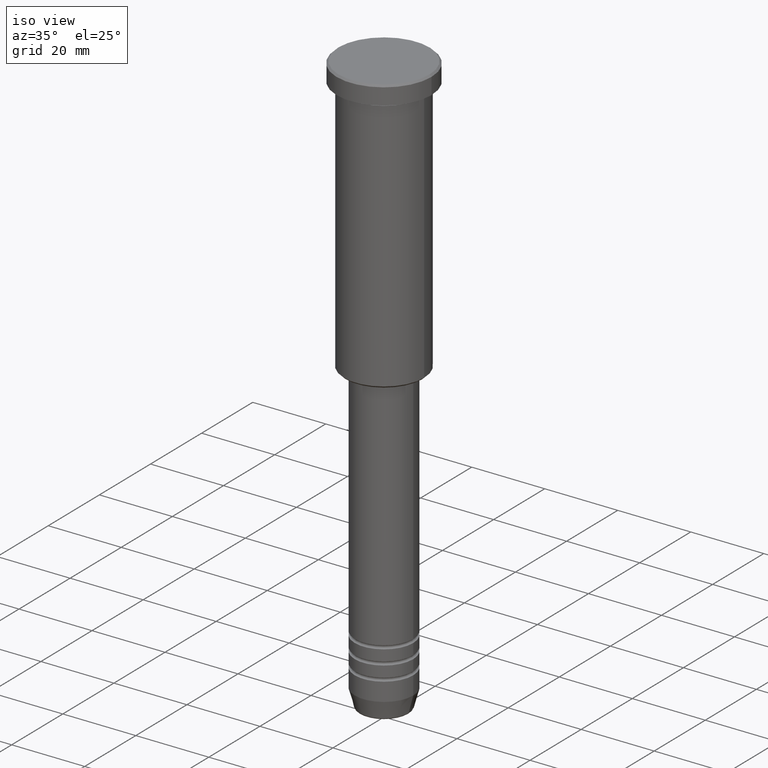
[diagram: clean part render]
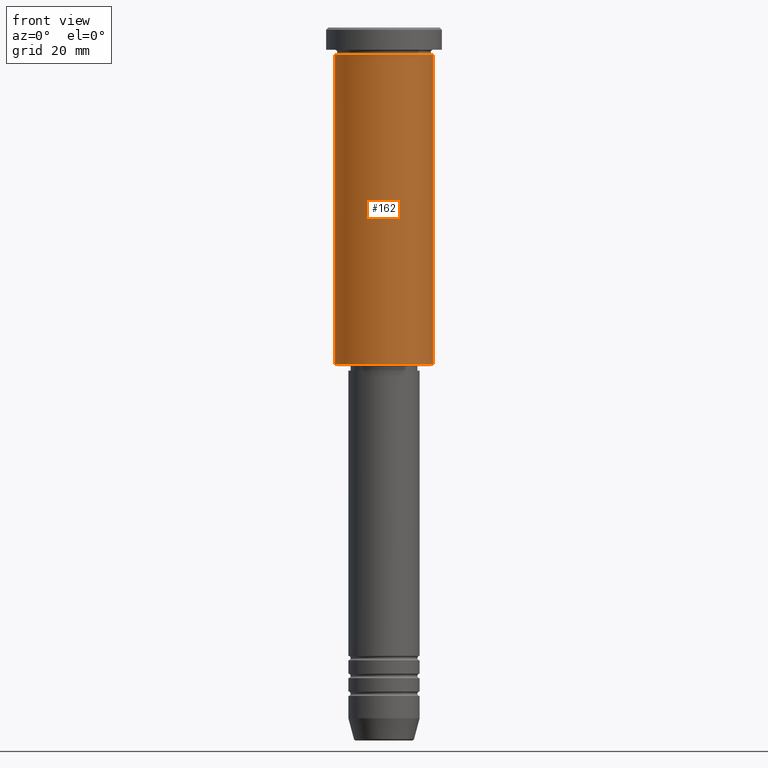
[diagram: tour spotlight — one face highlighted and labeled with its STEP entity id]
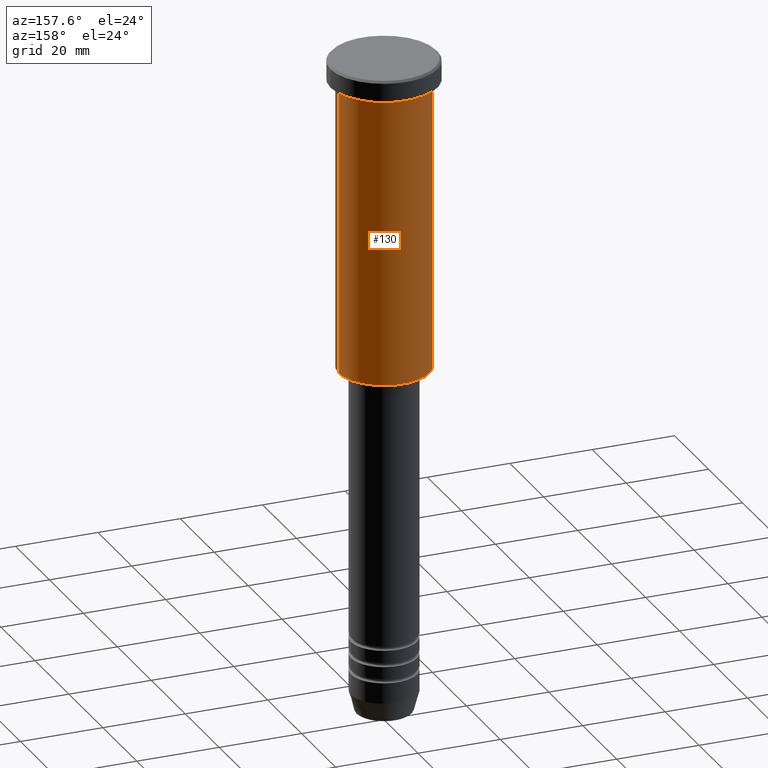
[diagram: tour spotlight — one face highlighted and labeled with its STEP entity id]
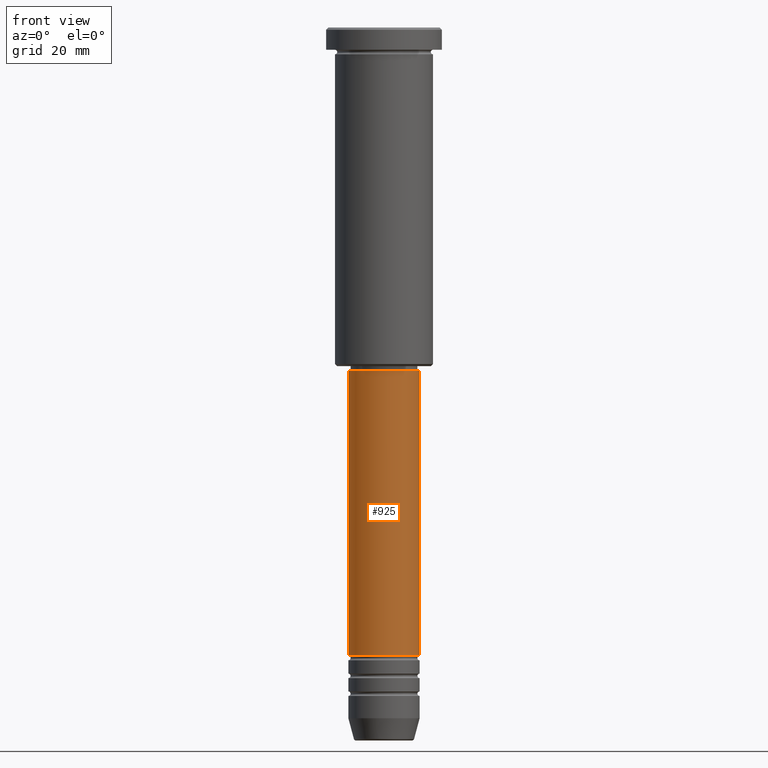
[diagram: tour spotlight — one face highlighted and labeled with its STEP entity id]
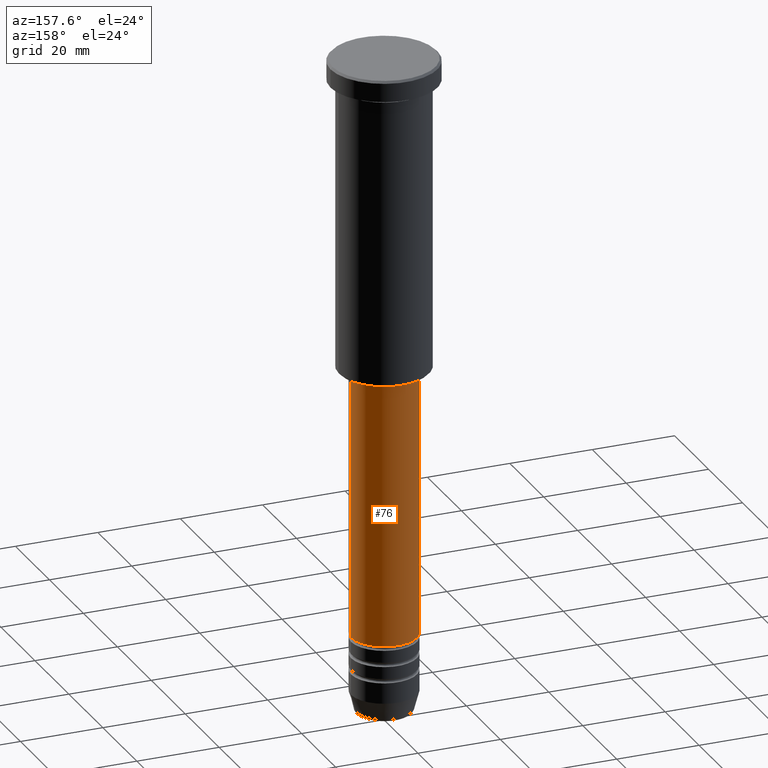
[diagram: tour spotlight — one face highlighted and labeled with its STEP entity id]
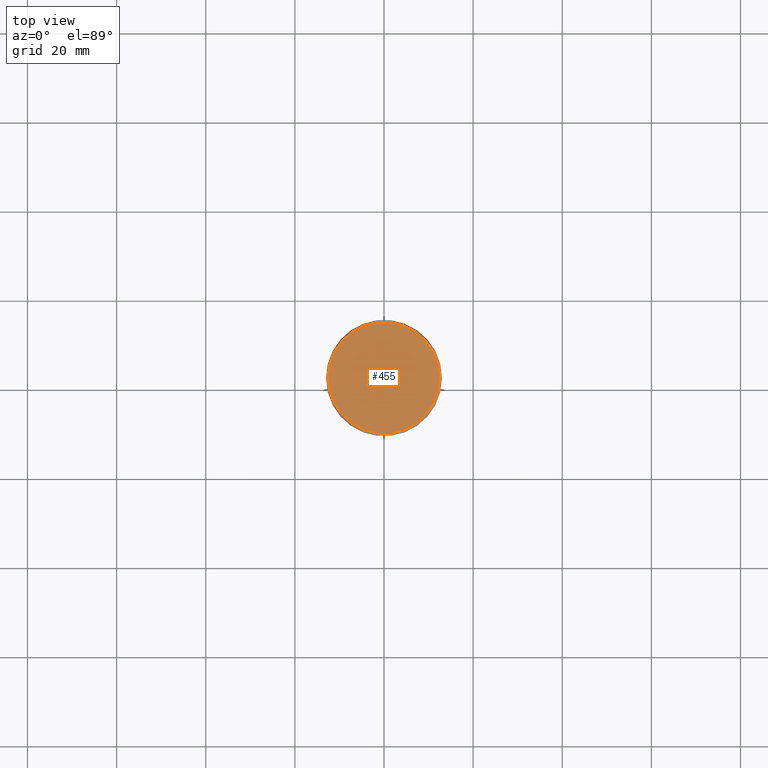
[diagram: tour spotlight — one face highlighted and labeled with its STEP entity id]
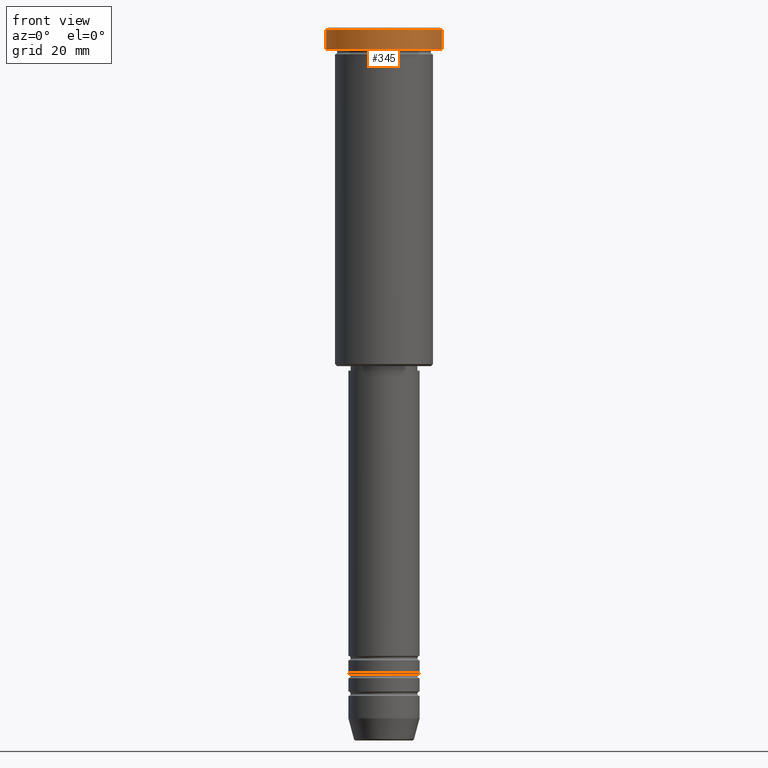
[diagram: tour spotlight — one face highlighted and labeled with its STEP entity id]
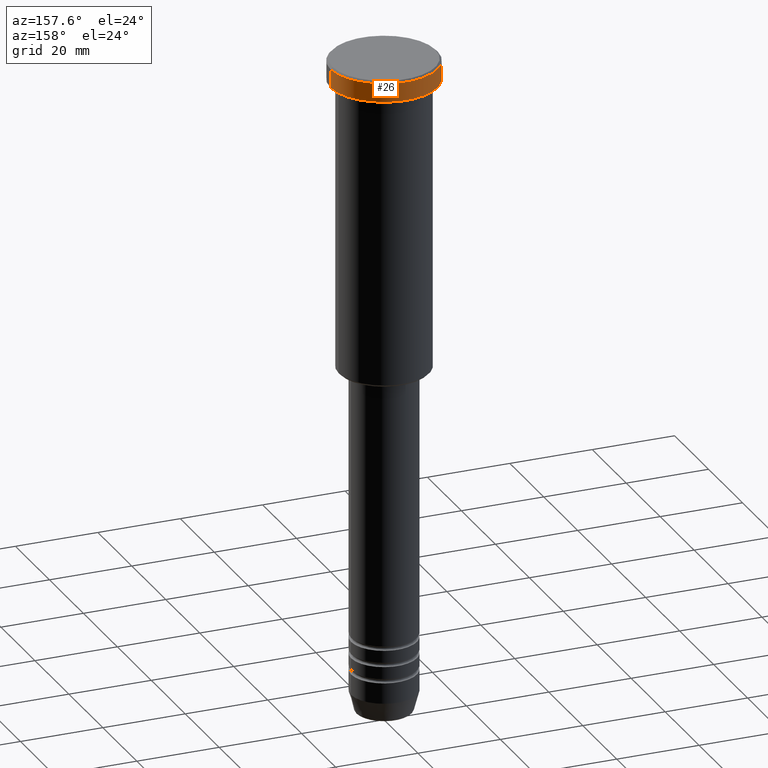
[diagram: tour spotlight — one face highlighted and labeled with its STEP entity id]
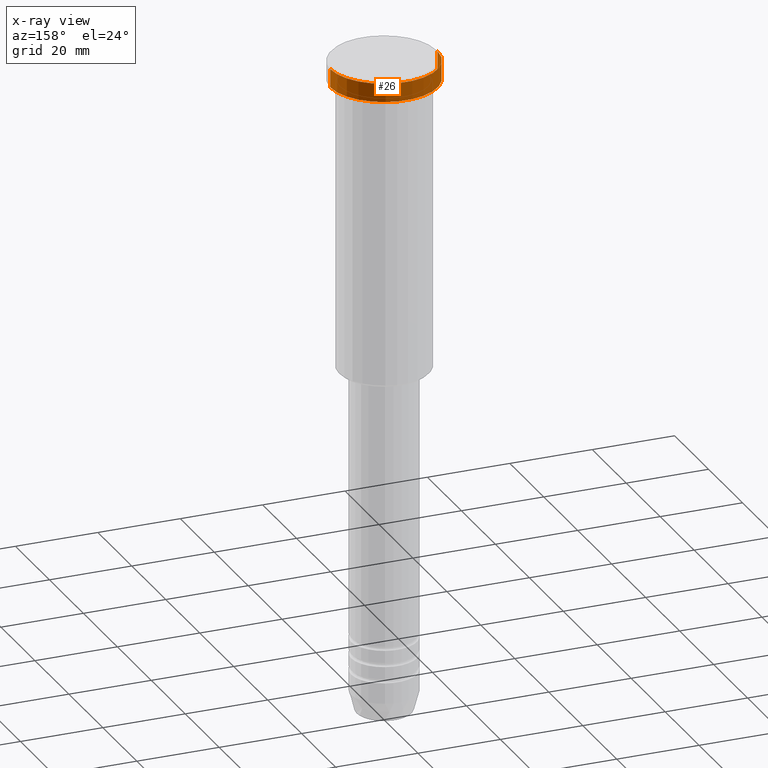
[diagram: x-ray of the same camera — body ghosted, this tour face saturated]
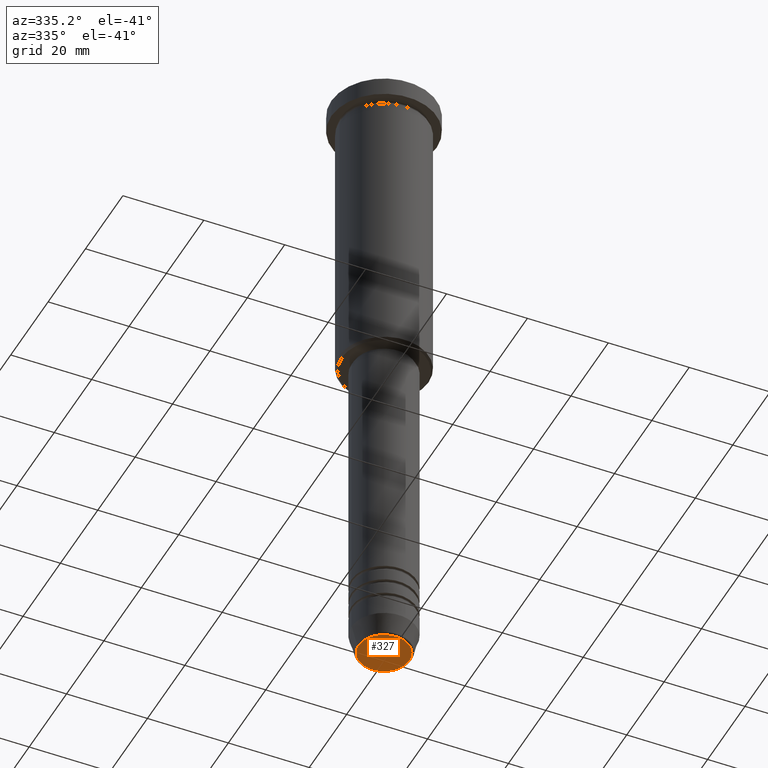
[diagram: tour spotlight — one face highlighted and labeled with its STEP entity id]
A machine part: a face-by-face anatomy tour. The part has 43 B-rep faces; the first image is the clean iso view, then the 8 largest visible faces are spotlighted one at a time (largest first), each with its STEP entity span.

Face 1 — front view, entity #162. In plain terms, the highlighted cylindrical surface (partial cylindrical patch) has radius 11 mm, axis along (-0, -0, 1).
Definition (entity closure, byte-faithful):
#3 = CYLINDRICAL_SURFACE ( 'NONE', #5, 11.00000000000000000 ) ;
#5 = AXIS2_PLACEMENT_3D ( 'NONE', #1017, #453, #198 ) ;
#22 = CARTESIAN_POINT ( 'NONE',  ( 0.000000000000000000, 0.000000000000000000, -75.49999999999998579 ) ) ;
#59 = VERTEX_POINT ( 'NONE', #591 ) ;
#68 = EDGE_LOOP ( 'NONE', ( #470, #503, #355, #822 ) ) ;
#69 = AXIS2_PLACEMENT_3D ( 'NONE', #990, #172, #473 ) ;
#139 = EDGE_CURVE ( 'NONE', #887, #1087, #705, .T. ) ;
#162 = ADVANCED_FACE ( 'NONE', ( #447 ), #3, .T. ) ;
#172 = DIRECTION ( 'NONE',  ( -0.000000000000000000, -0.000000000000000000, 1.000000000000000000 ) ) ;
#198 = DIRECTION ( 'NONE',  ( 1.000000000000000000, 0.000000000000000000, 0.000000000000000000 ) ) ;
#283 = VERTEX_POINT ( 'NONE', #820 ) ;
#285 = AXIS2_PLACEMENT_3D ( 'NONE', #22, #395, #309 ) ;
#309 = DIRECTION ( 'NONE',  ( -1.000000000000000000, 0.000000000000000000, 0.000000000000000000 ) ) ;
#355 = ORIENTED_EDGE ( 'NONE', *, *, #829, .T. ) ;
#395 = DIRECTION ( 'NONE',  ( -0.000000000000000000, -0.000000000000000000, 1.000000000000000000 ) ) ;
#406 = EDGE_CURVE ( 'NONE', #59, #887, #930, .T. ) ;
#447 = FACE_OUTER_BOUND ( 'NONE', #68, .T. ) ;
#453 = DIRECTION ( 'NONE',  ( -0.000000000000000000, -0.000000000000000000, 1.000000000000000000 ) ) ;
#470 = ORIENTED_EDGE ( 'NONE', *, *, #406, .F. ) ;
#473 = DIRECTION ( 'NONE',  ( 1.000000000000000000, 0.000000000000000000, 0.000000000000000000 ) ) ;
#503 = ORIENTED_EDGE ( 'NONE', *, *, #750, .T. ) ;
#511 = VECTOR ( 'NONE', #899, 1000.000000000000000 ) ;
#585 = CARTESIAN_POINT ( 'NONE',  ( 11.00000000000000000, 0.000000000000000000, 0.000000000000000000 ) ) ;
#591 = CARTESIAN_POINT ( 'NONE',  ( -11.00000000000000000, 1.347111479062088405E-15, -75.49999999999998579 ) ) ;
#602 = DIRECTION ( 'NONE',  ( -0.000000000000000000, -0.000000000000000000, 1.000000000000000000 ) ) ;
#705 = CIRCLE ( 'NONE', #69, 11.00000000000000000 ) ;
#748 = CARTESIAN_POINT ( 'NONE',  ( 11.00000000000000000, 0.000000000000000000, -5.999999999999999112 ) ) ;
#750 = EDGE_CURVE ( 'NONE', #59, #283, #787, .T. ) ;
#768 = CARTESIAN_POINT ( 'NONE',  ( -11.00000000000000000, 1.347111479062088405E-15, -5.999999999999999112 ) ) ;
#787 = CIRCLE ( 'NONE', #285, 11.00000000000000000 ) ;
#820 = CARTESIAN_POINT ( 'NONE',  ( 11.00000000000000000, 0.000000000000000000, -75.49999999999998579 ) ) ;
#822 = ORIENTED_EDGE ( 'NONE', *, *, #139, .F. ) ;
#829 = EDGE_CURVE ( 'NONE', #283, #1087, #1129, .T. ) ;
#832 = CARTESIAN_POINT ( 'NONE',  ( -11.00000000000000000, 1.347111479062088405E-15, 0.000000000000000000 ) ) ;
#887 = VERTEX_POINT ( 'NONE', #768 ) ;
#899 = DIRECTION ( 'NONE',  ( -0.000000000000000000, -0.000000000000000000, 1.000000000000000000 ) ) ;
#930 = LINE ( 'NONE', #832, #511 ) ;
#990 = CARTESIAN_POINT ( 'NONE',  ( 0.000000000000000000, 0.000000000000000000, -5.999999999999999112 ) ) ;
#1017 = CARTESIAN_POINT ( 'NONE',  ( 0.000000000000000000, 0.000000000000000000, 0.000000000000000000 ) ) ;
#1087 = VERTEX_POINT ( 'NONE', #748 ) ;
#1091 = VECTOR ( 'NONE', #602, 1000.000000000000000 ) ;
#1129 = LINE ( 'NONE', #585, #1091 ) ;

Face 2 — auxiliary view, entity #130. In plain terms, the highlighted cylindrical surface (partial cylindrical patch) has radius 11 mm, axis along (-0, -0, 1).
Definition (entity closure, byte-faithful):
#46 = EDGE_CURVE ( 'NONE', #283, #59, #889, .T. ) ;
#59 = VERTEX_POINT ( 'NONE', #591 ) ;
#70 = EDGE_LOOP ( 'NONE', ( #371, #1155, #772, #647 ) ) ;
#130 = ADVANCED_FACE ( 'NONE', ( #368 ), #1173, .T. ) ;
#132 = CARTESIAN_POINT ( 'NONE',  ( 0.000000000000000000, 0.000000000000000000, -75.49999999999998579 ) ) ;
#259 = DIRECTION ( 'NONE',  ( -0.000000000000000000, -0.000000000000000000, 1.000000000000000000 ) ) ;
#282 = CIRCLE ( 'NONE', #696, 11.00000000000000000 ) ;
#283 = VERTEX_POINT ( 'NONE', #820 ) ;
#368 = FACE_OUTER_BOUND ( 'NONE', #70, .T. ) ;
#371 = ORIENTED_EDGE ( 'NONE', *, *, #46, .T. ) ;
#406 = EDGE_CURVE ( 'NONE', #59, #887, #930, .T. ) ;
#509 = DIRECTION ( 'NONE',  ( 1.000000000000000000, 0.000000000000000000, 0.000000000000000000 ) ) ;
#511 = VECTOR ( 'NONE', #899, 1000.000000000000000 ) ;
#585 = CARTESIAN_POINT ( 'NONE',  ( 11.00000000000000000, 0.000000000000000000, 0.000000000000000000 ) ) ;
#591 = CARTESIAN_POINT ( 'NONE',  ( -11.00000000000000000, 1.347111479062088405E-15, -75.49999999999998579 ) ) ;
#602 = DIRECTION ( 'NONE',  ( -0.000000000000000000, -0.000000000000000000, 1.000000000000000000 ) ) ;
#647 = ORIENTED_EDGE ( 'NONE', *, *, #829, .F. ) ;
#696 = AXIS2_PLACEMENT_3D ( 'NONE', #1033, #1056, #509 ) ;
#748 = CARTESIAN_POINT ( 'NONE',  ( 11.00000000000000000, 0.000000000000000000, -5.999999999999999112 ) ) ;
#768 = CARTESIAN_POINT ( 'NONE',  ( -11.00000000000000000, 1.347111479062088405E-15, -5.999999999999999112 ) ) ;
#772 = ORIENTED_EDGE ( 'NONE', *, *, #924, .F. ) ;
#820 = CARTESIAN_POINT ( 'NONE',  ( 11.00000000000000000, 0.000000000000000000, -75.49999999999998579 ) ) ;
#829 = EDGE_CURVE ( 'NONE', #283, #1087, #1129, .T. ) ;
#832 = CARTESIAN_POINT ( 'NONE',  ( -11.00000000000000000, 1.347111479062088405E-15, 0.000000000000000000 ) ) ;
#887 = VERTEX_POINT ( 'NONE', #768 ) ;
#889 = CIRCLE ( 'NONE', #912, 11.00000000000000000 ) ;
#899 = DIRECTION ( 'NONE',  ( -0.000000000000000000, -0.000000000000000000, 1.000000000000000000 ) ) ;
#912 = AXIS2_PLACEMENT_3D ( 'NONE', #132, #1044, #948 ) ;
#924 = EDGE_CURVE ( 'NONE', #1087, #887, #282, .T. ) ;
#930 = LINE ( 'NONE', #832, #511 ) ;
#948 = DIRECTION ( 'NONE',  ( -1.000000000000000000, 0.000000000000000000, 0.000000000000000000 ) ) ;
#974 = DIRECTION ( 'NONE',  ( 1.000000000000000000, 0.000000000000000000, 0.000000000000000000 ) ) ;
#1033 = CARTESIAN_POINT ( 'NONE',  ( 0.000000000000000000, 0.000000000000000000, -5.999999999999999112 ) ) ;
#1044 = DIRECTION ( 'NONE',  ( -0.000000000000000000, -0.000000000000000000, 1.000000000000000000 ) ) ;
#1056 = DIRECTION ( 'NONE',  ( -0.000000000000000000, -0.000000000000000000, 1.000000000000000000 ) ) ;
#1058 = CARTESIAN_POINT ( 'NONE',  ( 0.000000000000000000, 0.000000000000000000, 0.000000000000000000 ) ) ;
#1087 = VERTEX_POINT ( 'NONE', #748 ) ;
#1091 = VECTOR ( 'NONE', #602, 1000.000000000000000 ) ;
#1129 = LINE ( 'NONE', #585, #1091 ) ;
#1155 = ORIENTED_EDGE ( 'NONE', *, *, #406, .T. ) ;
#1169 = AXIS2_PLACEMENT_3D ( 'NONE', #1058, #259, #974 ) ;
#1173 = CYLINDRICAL_SURFACE ( 'NONE', #1169, 11.00000000000000000 ) ;

Face 3 — front view, entity #925. In plain terms, the highlighted cylindrical surface (edge-blend (fillet) strip) has radius 8 mm, axis along (-0, -0, 1).
Definition (entity closure, byte-faithful):
#12 = EDGE_CURVE ( 'NONE', #1013, #932, #297, .T. ) ;
#15 = EDGE_CURVE ( 'NONE', #280, #932, #247, .T. ) ;
#55 = CARTESIAN_POINT ( 'NONE',  ( 8.000000000000000000, 0.000000000000000000, -77.00000000000004263 ) ) ;
#60 = CIRCLE ( 'NONE', #1032, 8.000000000000000000 ) ;
#102 = CARTESIAN_POINT ( 'NONE',  ( 0.000000000000000000, 0.000000000000000000, -77.00000000000004263 ) ) ;
#148 = DIRECTION ( 'NONE',  ( -0.000000000000000000, -0.000000000000000000, 1.000000000000000000 ) ) ;
#155 = CARTESIAN_POINT ( 'NONE',  ( 8.000000000000000000, 0.000000000000000000, -141.0000000000000000 ) ) ;
#182 = AXIS2_PLACEMENT_3D ( 'NONE', #874, #593, #962 ) ;
#223 = CYLINDRICAL_SURFACE ( 'NONE', #182, 8.000000000000000000 ) ;
#234 = FACE_OUTER_BOUND ( 'NONE', #919, .T. ) ;
#247 = CIRCLE ( 'NONE', #642, 8.000000000000000000 ) ;
#280 = VERTEX_POINT ( 'NONE', #516 ) ;
#297 = LINE ( 'NONE', #378, #769 ) ;
#311 = ORIENTED_EDGE ( 'NONE', *, *, #15, .F. ) ;
#378 = CARTESIAN_POINT ( 'NONE',  ( 8.000000000000000000, 0.000000000000000000, 0.000000000000000000 ) ) ;
#379 = LINE ( 'NONE', #743, #906 ) ;
#388 = ORIENTED_EDGE ( 'NONE', *, *, #12, .T. ) ;
#460 = ORIENTED_EDGE ( 'NONE', *, *, #1108, .F. ) ;
#464 = DIRECTION ( 'NONE',  ( -0.000000000000000000, -0.000000000000000000, 1.000000000000000000 ) ) ;
#516 = CARTESIAN_POINT ( 'NONE',  ( -8.000000000000000000, 9.797174393178825657E-16, -77.00000000000004263 ) ) ;
#518 = VERTEX_POINT ( 'NONE', #1052 ) ;
#593 = DIRECTION ( 'NONE',  ( -0.000000000000000000, -0.000000000000000000, 1.000000000000000000 ) ) ;
#623 = EDGE_CURVE ( 'NONE', #518, #1013, #60, .T. ) ;
#642 = AXIS2_PLACEMENT_3D ( 'NONE', #102, #464, #825 ) ;
#734 = DIRECTION ( 'NONE',  ( -0.000000000000000000, -0.000000000000000000, 1.000000000000000000 ) ) ;
#743 = CARTESIAN_POINT ( 'NONE',  ( -8.000000000000000000, 9.797174393178825657E-16, 0.000000000000000000 ) ) ;
#769 = VECTOR ( 'NONE', #905, 1000.000000000000000 ) ;
#825 = DIRECTION ( 'NONE',  ( 1.000000000000000000, 0.000000000000000000, 0.000000000000000000 ) ) ;
#874 = CARTESIAN_POINT ( 'NONE',  ( 0.000000000000000000, 0.000000000000000000, 0.000000000000000000 ) ) ;
#883 = CARTESIAN_POINT ( 'NONE',  ( 0.000000000000000000, 0.000000000000000000, -141.0000000000000000 ) ) ;
#905 = DIRECTION ( 'NONE',  ( -0.000000000000000000, -0.000000000000000000, 1.000000000000000000 ) ) ;
#906 = VECTOR ( 'NONE', #734, 1000.000000000000000 ) ;
#919 = EDGE_LOOP ( 'NONE', ( #460, #1064, #388, #311 ) ) ;
#925 = ADVANCED_FACE ( 'NONE', ( #234 ), #223, .T. ) ;
#932 = VERTEX_POINT ( 'NONE', #55 ) ;
#962 = DIRECTION ( 'NONE',  ( 1.000000000000000000, 0.000000000000000000, 0.000000000000000000 ) ) ;
#1013 = VERTEX_POINT ( 'NONE', #155 ) ;
#1032 = AXIS2_PLACEMENT_3D ( 'NONE', #883, #148, #1158 ) ;
#1052 = CARTESIAN_POINT ( 'NONE',  ( -8.000000000000000000, 9.797174393178825657E-16, -141.0000000000000000 ) ) ;
#1064 = ORIENTED_EDGE ( 'NONE', *, *, #623, .T. ) ;
#1108 = EDGE_CURVE ( 'NONE', #518, #280, #379, .T. ) ;
#1158 = DIRECTION ( 'NONE',  ( 1.000000000000000000, 0.000000000000000000, 0.000000000000000000 ) ) ;

Face 4 — auxiliary view, entity #76. In plain terms, the highlighted cylindrical surface (edge-blend (fillet) strip) has radius 8 mm, axis along (-0, -0, 1).
Definition (entity closure, byte-faithful):
#11 = DIRECTION ( 'NONE',  ( -0.000000000000000000, -0.000000000000000000, 1.000000000000000000 ) ) ;
#12 = EDGE_CURVE ( 'NONE', #1013, #932, #297, .T. ) ;
#55 = CARTESIAN_POINT ( 'NONE',  ( 8.000000000000000000, 0.000000000000000000, -77.00000000000004263 ) ) ;
#76 = ADVANCED_FACE ( 'NONE', ( #597 ), #870, .T. ) ;
#134 = CARTESIAN_POINT ( 'NONE',  ( 0.000000000000000000, 0.000000000000000000, -141.0000000000000000 ) ) ;
#140 = CIRCLE ( 'NONE', #804, 8.000000000000000000 ) ;
#155 = CARTESIAN_POINT ( 'NONE',  ( 8.000000000000000000, 0.000000000000000000, -141.0000000000000000 ) ) ;
#280 = VERTEX_POINT ( 'NONE', #516 ) ;
#297 = LINE ( 'NONE', #378, #769 ) ;
#326 = ORIENTED_EDGE ( 'NONE', *, *, #858, .T. ) ;
#378 = CARTESIAN_POINT ( 'NONE',  ( 8.000000000000000000, 0.000000000000000000, 0.000000000000000000 ) ) ;
#379 = LINE ( 'NONE', #743, #906 ) ;
#389 = DIRECTION ( 'NONE',  ( 1.000000000000000000, 0.000000000000000000, 0.000000000000000000 ) ) ;
#391 = CARTESIAN_POINT ( 'NONE',  ( 0.000000000000000000, 0.000000000000000000, -77.00000000000004263 ) ) ;
#426 = CARTESIAN_POINT ( 'NONE',  ( 0.000000000000000000, 0.000000000000000000, 0.000000000000000000 ) ) ;
#468 = ORIENTED_EDGE ( 'NONE', *, *, #1159, .F. ) ;
#516 = CARTESIAN_POINT ( 'NONE',  ( -8.000000000000000000, 9.797174393178825657E-16, -77.00000000000004263 ) ) ;
#518 = VERTEX_POINT ( 'NONE', #1052 ) ;
#519 = DIRECTION ( 'NONE',  ( -0.000000000000000000, -0.000000000000000000, 1.000000000000000000 ) ) ;
#597 = FACE_OUTER_BOUND ( 'NONE', #977, .T. ) ;
#709 = DIRECTION ( 'NONE',  ( 1.000000000000000000, 0.000000000000000000, 0.000000000000000000 ) ) ;
#734 = DIRECTION ( 'NONE',  ( -0.000000000000000000, -0.000000000000000000, 1.000000000000000000 ) ) ;
#743 = CARTESIAN_POINT ( 'NONE',  ( -8.000000000000000000, 9.797174393178825657E-16, 0.000000000000000000 ) ) ;
#769 = VECTOR ( 'NONE', #905, 1000.000000000000000 ) ;
#804 = AXIS2_PLACEMENT_3D ( 'NONE', #134, #1039, #971 ) ;
#858 = EDGE_CURVE ( 'NONE', #1013, #518, #140, .T. ) ;
#861 = AXIS2_PLACEMENT_3D ( 'NONE', #391, #11, #389 ) ;
#862 = CIRCLE ( 'NONE', #861, 8.000000000000000000 ) ;
#870 = CYLINDRICAL_SURFACE ( 'NONE', #989, 8.000000000000000000 ) ;
#879 = ORIENTED_EDGE ( 'NONE', *, *, #12, .F. ) ;
#905 = DIRECTION ( 'NONE',  ( -0.000000000000000000, -0.000000000000000000, 1.000000000000000000 ) ) ;
#906 = VECTOR ( 'NONE', #734, 1000.000000000000000 ) ;
#932 = VERTEX_POINT ( 'NONE', #55 ) ;
#971 = DIRECTION ( 'NONE',  ( 1.000000000000000000, 0.000000000000000000, 0.000000000000000000 ) ) ;
#977 = EDGE_LOOP ( 'NONE', ( #326, #1093, #468, #879 ) ) ;
#989 = AXIS2_PLACEMENT_3D ( 'NONE', #426, #519, #709 ) ;
#1013 = VERTEX_POINT ( 'NONE', #155 ) ;
#1039 = DIRECTION ( 'NONE',  ( -0.000000000000000000, -0.000000000000000000, 1.000000000000000000 ) ) ;
#1052 = CARTESIAN_POINT ( 'NONE',  ( -8.000000000000000000, 9.797174393178825657E-16, -141.0000000000000000 ) ) ;
#1093 = ORIENTED_EDGE ( 'NONE', *, *, #1108, .T. ) ;
#1108 = EDGE_CURVE ( 'NONE', #518, #280, #379, .T. ) ;
#1159 = EDGE_CURVE ( 'NONE', #932, #280, #862, .T. ) ;

Face 5 — top view, entity #455. In plain terms, the highlighted planar face has unit normal (0, -0, 1).
Definition (entity closure, byte-faithful):
#24 = DIRECTION ( 'NONE',  ( 0.000000000000000000, -0.000000000000000000, 1.000000000000000000 ) ) ;
#27 = EDGE_CURVE ( 'NONE', #361, #218, #226, .T. ) ;
#187 = CARTESIAN_POINT ( 'NONE',  ( 0.000000000000000000, 0.000000000000000000, 0.000000000000000000 ) ) ;
#218 = VERTEX_POINT ( 'NONE', #676 ) ;
#226 = CIRCLE ( 'NONE', #914, 12.49999999999999645 ) ;
#250 = CARTESIAN_POINT ( 'NONE',  ( -12.49999999999999645, 0.000000000000000000, 0.000000000000000000 ) ) ;
#266 = FACE_OUTER_BOUND ( 'NONE', #758, .T. ) ;
#360 = DIRECTION ( 'NONE',  ( 1.000000000000000000, 0.000000000000000000, 0.000000000000000000 ) ) ;
#361 = VERTEX_POINT ( 'NONE', #250 ) ;
#362 = AXIS2_PLACEMENT_3D ( 'NONE', #187, #369, #360 ) ;
#369 = DIRECTION ( 'NONE',  ( -0.000000000000000000, -0.000000000000000000, 1.000000000000000000 ) ) ;
#398 = DIRECTION ( 'NONE',  ( 1.000000000000000000, 0.000000000000000000, 0.000000000000000000 ) ) ;
#455 = ADVANCED_FACE ( 'NONE', ( #266 ), #834, .T. ) ;
#666 = DIRECTION ( 'NONE',  ( 1.000000000000000000, 0.000000000000000000, 0.000000000000000000 ) ) ;
#676 = CARTESIAN_POINT ( 'NONE',  ( 12.49999999999999645, 1.561424668912875111E-15, 0.000000000000000000 ) ) ;
#733 = ORIENTED_EDGE ( 'NONE', *, *, #1041, .T. ) ;
#758 = EDGE_LOOP ( 'NONE', ( #1156, #733 ) ) ;
#834 = PLANE ( 'NONE',  #1096 ) ;
#852 = CARTESIAN_POINT ( 'NONE',  ( 0.000000000000000000, 0.000000000000000000, 0.000000000000000000 ) ) ;
#914 = AXIS2_PLACEMENT_3D ( 'NONE', #954, #1109, #666 ) ;
#954 = CARTESIAN_POINT ( 'NONE',  ( 0.000000000000000000, 0.000000000000000000, 0.000000000000000000 ) ) ;
#1041 = EDGE_CURVE ( 'NONE', #218, #361, #1072, .T. ) ;
#1072 = CIRCLE ( 'NONE', #362, 12.49999999999999645 ) ;
#1096 = AXIS2_PLACEMENT_3D ( 'NONE', #852, #24, #398 ) ;
#1109 = DIRECTION ( 'NONE',  ( -0.000000000000000000, -0.000000000000000000, 1.000000000000000000 ) ) ;
#1156 = ORIENTED_EDGE ( 'NONE', *, *, #27, .T. ) ;

Face 6 — front view, entity #345. In plain terms, the highlighted cylindrical surface (partial cylindrical patch) has radius 13 mm, axis along (-0, -0, 1).
Definition (entity closure, byte-faithful):
#49 = CARTESIAN_POINT ( 'NONE',  ( 13.00000000000000000, 0.000000000000000000, 0.000000000000000000 ) ) ;
#54 = CARTESIAN_POINT ( 'NONE',  ( 0.000000000000000000, 0.000000000000000000, -0.4999999999999935052 ) ) ;
#94 = CARTESIAN_POINT ( 'NONE',  ( -13.00000000000000000, 1.592040838891559095E-15, -0.4999999999999935052 ) ) ;
#119 = AXIS2_PLACEMENT_3D ( 'NONE', #521, #1034, #1143 ) ;
#175 = CARTESIAN_POINT ( 'NONE',  ( 13.00000000000000000, 0.000000000000000000, -0.4999999999999935052 ) ) ;
#192 = ORIENTED_EDGE ( 'NONE', *, *, #621, .T. ) ;
#264 = EDGE_CURVE ( 'NONE', #1102, #1132, #633, .T. ) ;
#333 = DIRECTION ( 'NONE',  ( 1.000000000000000000, 0.000000000000000000, 0.000000000000000000 ) ) ;
#342 = CARTESIAN_POINT ( 'NONE',  ( 0.000000000000000000, 0.000000000000000000, -5.000000000000000000 ) ) ;
#345 = ADVANCED_FACE ( 'NONE', ( #994 ), #985, .T. ) ;
#415 = DIRECTION ( 'NONE',  ( -0.000000000000000000, -0.000000000000000000, 1.000000000000000000 ) ) ;
#421 = CIRCLE ( 'NONE', #1050, 13.00000000000000000 ) ;
#452 = CARTESIAN_POINT ( 'NONE',  ( -13.00000000000000000, 1.592040838891559095E-15, 0.000000000000000000 ) ) ;
#475 = CARTESIAN_POINT ( 'NONE',  ( -13.00000000000000000, 1.592040838891559095E-15, -5.000000000000000000 ) ) ;
#501 = VECTOR ( 'NONE', #638, 1000.000000000000000 ) ;
#521 = CARTESIAN_POINT ( 'NONE',  ( 0.000000000000000000, 0.000000000000000000, 0.000000000000000000 ) ) ;
#524 = DIRECTION ( 'NONE',  ( 1.000000000000000000, 0.000000000000000000, 0.000000000000000000 ) ) ;
#613 = EDGE_LOOP ( 'NONE', ( #920, #986, #681, #192 ) ) ;
#618 = VERTEX_POINT ( 'NONE', #175 ) ;
#621 = EDGE_CURVE ( 'NONE', #618, #1132, #1142, .T. ) ;
#633 = LINE ( 'NONE', #452, #501 ) ;
#638 = DIRECTION ( 'NONE',  ( -0.000000000000000000, -0.000000000000000000, 1.000000000000000000 ) ) ;
#681 = ORIENTED_EDGE ( 'NONE', *, *, #713, .T. ) ;
#699 = DIRECTION ( 'NONE',  ( 0.000000000000000000, 0.000000000000000000, -1.000000000000000000 ) ) ;
#713 = EDGE_CURVE ( 'NONE', #759, #618, #966, .T. ) ;
#759 = VERTEX_POINT ( 'NONE', #1031 ) ;
#775 = DIRECTION ( 'NONE',  ( -0.000000000000000000, -0.000000000000000000, 1.000000000000000000 ) ) ;
#875 = EDGE_CURVE ( 'NONE', #1102, #759, #421, .T. ) ;
#920 = ORIENTED_EDGE ( 'NONE', *, *, #264, .F. ) ;
#940 = AXIS2_PLACEMENT_3D ( 'NONE', #54, #699, #524 ) ;
#946 = VECTOR ( 'NONE', #415, 1000.000000000000000 ) ;
#966 = LINE ( 'NONE', #49, #946 ) ;
#985 = CYLINDRICAL_SURFACE ( 'NONE', #119, 13.00000000000000000 ) ;
#986 = ORIENTED_EDGE ( 'NONE', *, *, #875, .T. ) ;
#994 = FACE_OUTER_BOUND ( 'NONE', #613, .T. ) ;
#1031 = CARTESIAN_POINT ( 'NONE',  ( 13.00000000000000000, 0.000000000000000000, -5.000000000000000000 ) ) ;
#1034 = DIRECTION ( 'NONE',  ( -0.000000000000000000, -0.000000000000000000, 1.000000000000000000 ) ) ;
#1050 = AXIS2_PLACEMENT_3D ( 'NONE', #342, #775, #333 ) ;
#1102 = VERTEX_POINT ( 'NONE', #475 ) ;
#1132 = VERTEX_POINT ( 'NONE', #94 ) ;
#1142 = CIRCLE ( 'NONE', #940, 13.00000000000000000 ) ;
#1143 = DIRECTION ( 'NONE',  ( 1.000000000000000000, 0.000000000000000000, 0.000000000000000000 ) ) ;

Face 7 — auxiliary view, entity #26. An x-ray twin of the same camera follows (body ghosted, this face saturated) — the face is partly hidden behind the body. In plain terms, the highlighted cylindrical surface (partial cylindrical patch) has radius 13 mm, axis along (-0, -0, 1).
Definition (entity closure, byte-faithful):
#26 = ADVANCED_FACE ( 'NONE', ( #363 ), #110, .T. ) ;
#49 = CARTESIAN_POINT ( 'NONE',  ( 13.00000000000000000, 0.000000000000000000, 0.000000000000000000 ) ) ;
#86 = DIRECTION ( 'NONE',  ( 1.000000000000000000, 0.000000000000000000, 0.000000000000000000 ) ) ;
#94 = CARTESIAN_POINT ( 'NONE',  ( -13.00000000000000000, 1.592040838891559095E-15, -0.4999999999999935052 ) ) ;
#110 = CYLINDRICAL_SURFACE ( 'NONE', #740, 13.00000000000000000 ) ;
#122 = CIRCLE ( 'NONE', #318, 13.00000000000000000 ) ;
#133 = DIRECTION ( 'NONE',  ( 1.000000000000000000, 0.000000000000000000, 0.000000000000000000 ) ) ;
#171 = ORIENTED_EDGE ( 'NONE', *, *, #264, .T. ) ;
#175 = CARTESIAN_POINT ( 'NONE',  ( 13.00000000000000000, 0.000000000000000000, -0.4999999999999935052 ) ) ;
#178 = DIRECTION ( 'NONE',  ( -0.000000000000000000, -0.000000000000000000, 1.000000000000000000 ) ) ;
#232 = EDGE_CURVE ( 'NONE', #759, #1102, #1127, .T. ) ;
#256 = DIRECTION ( 'NONE',  ( 0.000000000000000000, 0.000000000000000000, -1.000000000000000000 ) ) ;
#264 = EDGE_CURVE ( 'NONE', #1102, #1132, #633, .T. ) ;
#289 = AXIS2_PLACEMENT_3D ( 'NONE', #1037, #582, #133 ) ;
#318 = AXIS2_PLACEMENT_3D ( 'NONE', #1062, #256, #536 ) ;
#331 = ORIENTED_EDGE ( 'NONE', *, *, #713, .F. ) ;
#363 = FACE_OUTER_BOUND ( 'NONE', #1011, .T. ) ;
#415 = DIRECTION ( 'NONE',  ( -0.000000000000000000, -0.000000000000000000, 1.000000000000000000 ) ) ;
#452 = CARTESIAN_POINT ( 'NONE',  ( -13.00000000000000000, 1.592040838891559095E-15, 0.000000000000000000 ) ) ;
#475 = CARTESIAN_POINT ( 'NONE',  ( -13.00000000000000000, 1.592040838891559095E-15, -5.000000000000000000 ) ) ;
#501 = VECTOR ( 'NONE', #638, 1000.000000000000000 ) ;
#536 = DIRECTION ( 'NONE',  ( 1.000000000000000000, 0.000000000000000000, 0.000000000000000000 ) ) ;
#582 = DIRECTION ( 'NONE',  ( -0.000000000000000000, -0.000000000000000000, 1.000000000000000000 ) ) ;
#618 = VERTEX_POINT ( 'NONE', #175 ) ;
#633 = LINE ( 'NONE', #452, #501 ) ;
#638 = DIRECTION ( 'NONE',  ( -0.000000000000000000, -0.000000000000000000, 1.000000000000000000 ) ) ;
#713 = EDGE_CURVE ( 'NONE', #759, #618, #966, .T. ) ;
#740 = AXIS2_PLACEMENT_3D ( 'NONE', #1082, #178, #86 ) ;
#759 = VERTEX_POINT ( 'NONE', #1031 ) ;
#812 = ORIENTED_EDGE ( 'NONE', *, *, #1069, .T. ) ;
#946 = VECTOR ( 'NONE', #415, 1000.000000000000000 ) ;
#966 = LINE ( 'NONE', #49, #946 ) ;
#1011 = EDGE_LOOP ( 'NONE', ( #1071, #171, #812, #331 ) ) ;
#1031 = CARTESIAN_POINT ( 'NONE',  ( 13.00000000000000000, 0.000000000000000000, -5.000000000000000000 ) ) ;
#1037 = CARTESIAN_POINT ( 'NONE',  ( 0.000000000000000000, 0.000000000000000000, -5.000000000000000000 ) ) ;
#1062 = CARTESIAN_POINT ( 'NONE',  ( 0.000000000000000000, 0.000000000000000000, -0.4999999999999935052 ) ) ;
#1069 = EDGE_CURVE ( 'NONE', #1132, #618, #122, .T. ) ;
#1071 = ORIENTED_EDGE ( 'NONE', *, *, #232, .T. ) ;
#1082 = CARTESIAN_POINT ( 'NONE',  ( 0.000000000000000000, 0.000000000000000000, 0.000000000000000000 ) ) ;
#1102 = VERTEX_POINT ( 'NONE', #475 ) ;
#1127 = CIRCLE ( 'NONE', #289, 13.00000000000000000 ) ;
#1132 = VERTEX_POINT ( 'NONE', #94 ) ;

Face 8 — auxiliary view, entity #327. In plain terms, the highlighted planar face has unit normal (0, -0, 1).
Definition (entity closure, byte-faithful):
#7 = DIRECTION ( 'NONE',  ( 0.000000000000000000, 0.000000000000000000, -1.000000000000000000 ) ) ;
#34 = CARTESIAN_POINT ( 'NONE',  ( 6.276590543854903892, 0.000000000000000000, -160.0000000000000284 ) ) ;
#82 = PLANE ( 'NONE',  #340 ) ;
#91 = CARTESIAN_POINT ( 'NONE',  ( 0.000000000000000000, 0.000000000000000000, -160.0000000000000284 ) ) ;
#125 = CIRCLE ( 'NONE', #545, 6.276590543854903892 ) ;
#213 = EDGE_CURVE ( 'NONE', #241, #548, #723, .T. ) ;
#241 = VERTEX_POINT ( 'NONE', #34 ) ;
#268 = CARTESIAN_POINT ( 'NONE',  ( -6.276590543854903892, 7.982336011935122327E-16, -160.0000000000000284 ) ) ;
#292 = EDGE_CURVE ( 'NONE', #548, #241, #125, .T. ) ;
#294 = DIRECTION ( 'NONE',  ( 0.000000000000000000, 0.000000000000000000, -1.000000000000000000 ) ) ;
#327 = ADVANCED_FACE ( 'NONE', ( #1067 ), #82, .F. ) ;
#340 = AXIS2_PLACEMENT_3D ( 'NONE', #91, #1161, #451 ) ;
#366 = AXIS2_PLACEMENT_3D ( 'NONE', #827, #7, #385 ) ;
#385 = DIRECTION ( 'NONE',  ( 1.000000000000000000, 0.000000000000000000, 0.000000000000000000 ) ) ;
#451 = DIRECTION ( 'NONE',  ( 1.000000000000000000, 0.000000000000000000, 0.000000000000000000 ) ) ;
#545 = AXIS2_PLACEMENT_3D ( 'NONE', #833, #294, #1114 ) ;
#548 = VERTEX_POINT ( 'NONE', #268 ) ;
#712 = ORIENTED_EDGE ( 'NONE', *, *, #292, .T. ) ;
#723 = CIRCLE ( 'NONE', #366, 6.276590543854903892 ) ;
#801 = EDGE_LOOP ( 'NONE', ( #941, #712 ) ) ;
#827 = CARTESIAN_POINT ( 'NONE',  ( 0.000000000000000000, 0.000000000000000000, -160.0000000000000284 ) ) ;
#833 = CARTESIAN_POINT ( 'NONE',  ( 0.000000000000000000, 0.000000000000000000, -160.0000000000000284 ) ) ;
#941 = ORIENTED_EDGE ( 'NONE', *, *, #213, .T. ) ;
#1067 = FACE_OUTER_BOUND ( 'NONE', #801, .T. ) ;
#1114 = DIRECTION ( 'NONE',  ( 1.000000000000000000, 0.000000000000000000, 0.000000000000000000 ) ) ;
#1161 = DIRECTION ( 'NONE',  ( 0.000000000000000000, -0.000000000000000000, 1.000000000000000000 ) ) ;